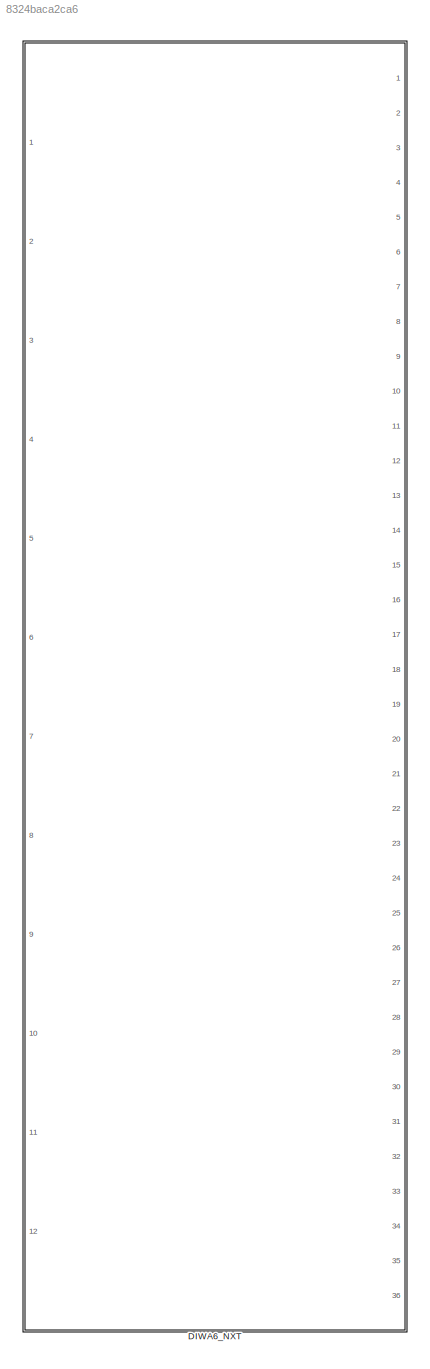
MODEL slx_8324baca2ca6
KIND library
CONFIG AbsTol = auto
CONFIG FixedStep = 0.01
CONFIG MaxStep = auto
CONFIG MinStep = auto
CONFIG RelTol = 1e-3
CONFIG SampleTimeConstraint = Unconstrained
CONFIG Solver = ode1
CONFIG SolverMode = Auto
CONFIG SolverName = ode1
CONFIG StartTime = 0.0
CONFIG StopTime = 10.0
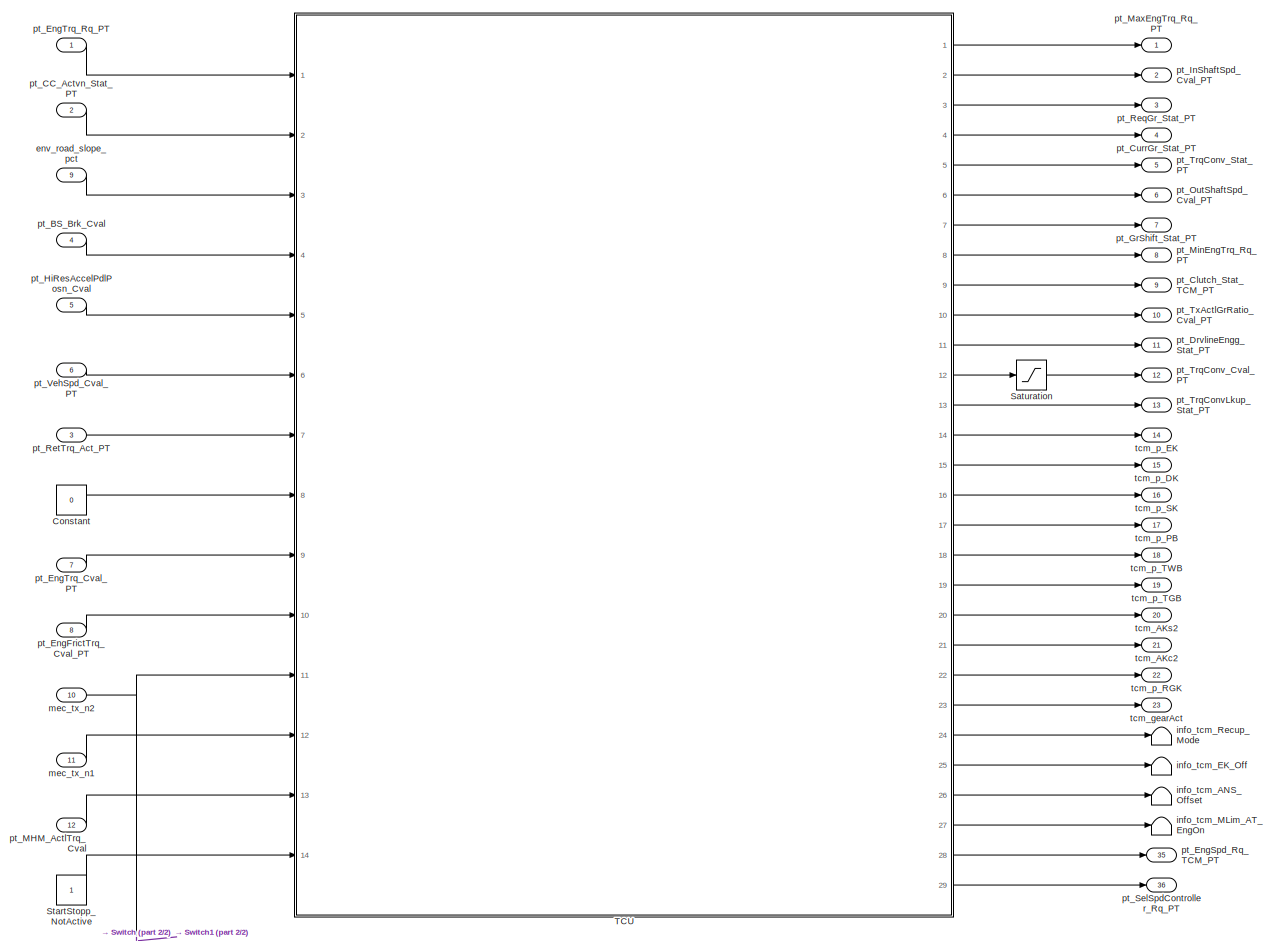
[diagram: DIWA6_NXT - part 1/2, full width, middle band]
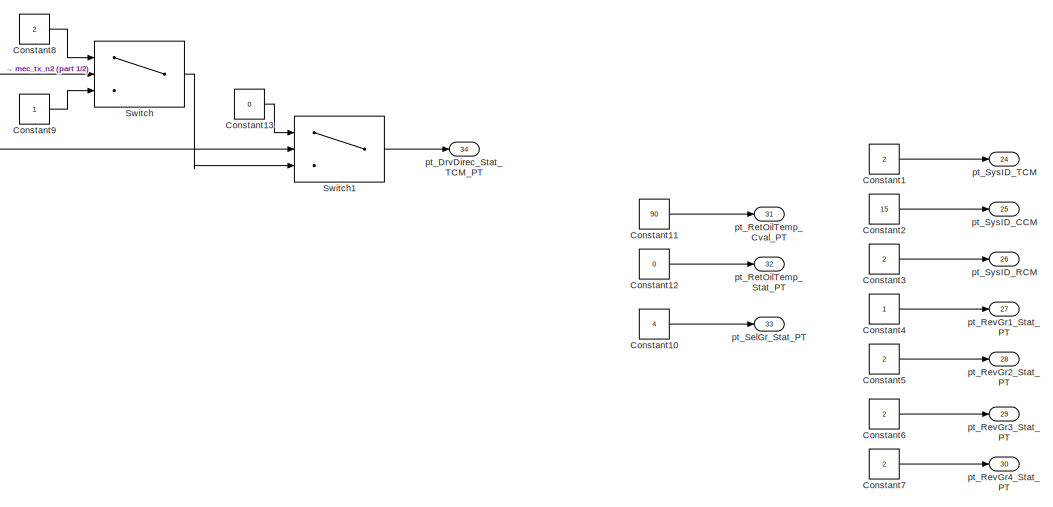
[diagram: DIWA6_NXT - part 2/2, full width, bottom band]
BLOCK [SubSystem] DIWA6_NXT
  Ports = [12, 36]
  RequestExecContextInheritance = off
  Variant = off
BLOCK [Constant] DIWA6_NXT/Constant
  Value = 0
BLOCK [Constant] DIWA6_NXT/Constant1
  Value = 2
BLOCK [Constant] DIWA6_NXT/Constant10
  Value = 4
BLOCK [Constant] DIWA6_NXT/Constant11
  Value = 90
BLOCK [Constant] DIWA6_NXT/Constant12
  Value = 0
BLOCK [Constant] DIWA6_NXT/Constant13
  Value = 0
BLOCK [Constant] DIWA6_NXT/Constant2
  Value = 15
BLOCK [Constant] DIWA6_NXT/Constant3
  Value = 2
BLOCK [Constant] DIWA6_NXT/Constant4
BLOCK [Constant] DIWA6_NXT/Constant5
  Value = 2
BLOCK [Constant] DIWA6_NXT/Constant6
  Value = 2
BLOCK [Constant] DIWA6_NXT/Constant7
  Value = 2
BLOCK [Constant] DIWA6_NXT/Constant8
  Value = 2
BLOCK [Constant] DIWA6_NXT/Constant9
BLOCK [Saturate] DIWA6_NXT/Saturation
  InputPortMap = u0
  LowerLimit = 0
  Ports = [1, 1]
  UpperLimit = 8107
BLOCK [Constant] DIWA6_NXT/StartStopp_NotActive
BLOCK [Switch] DIWA6_NXT/Switch
  Criteria = u2 > Threshold
  InputSameDT = off
  SaturateOnIntegerOverflow = off
  Threshold = -20
BLOCK [Switch] DIWA6_NXT/Switch1
  Criteria = u2 > Threshold
  InputSameDT = off
  SaturateOnIntegerOverflow = off
  Threshold = 20
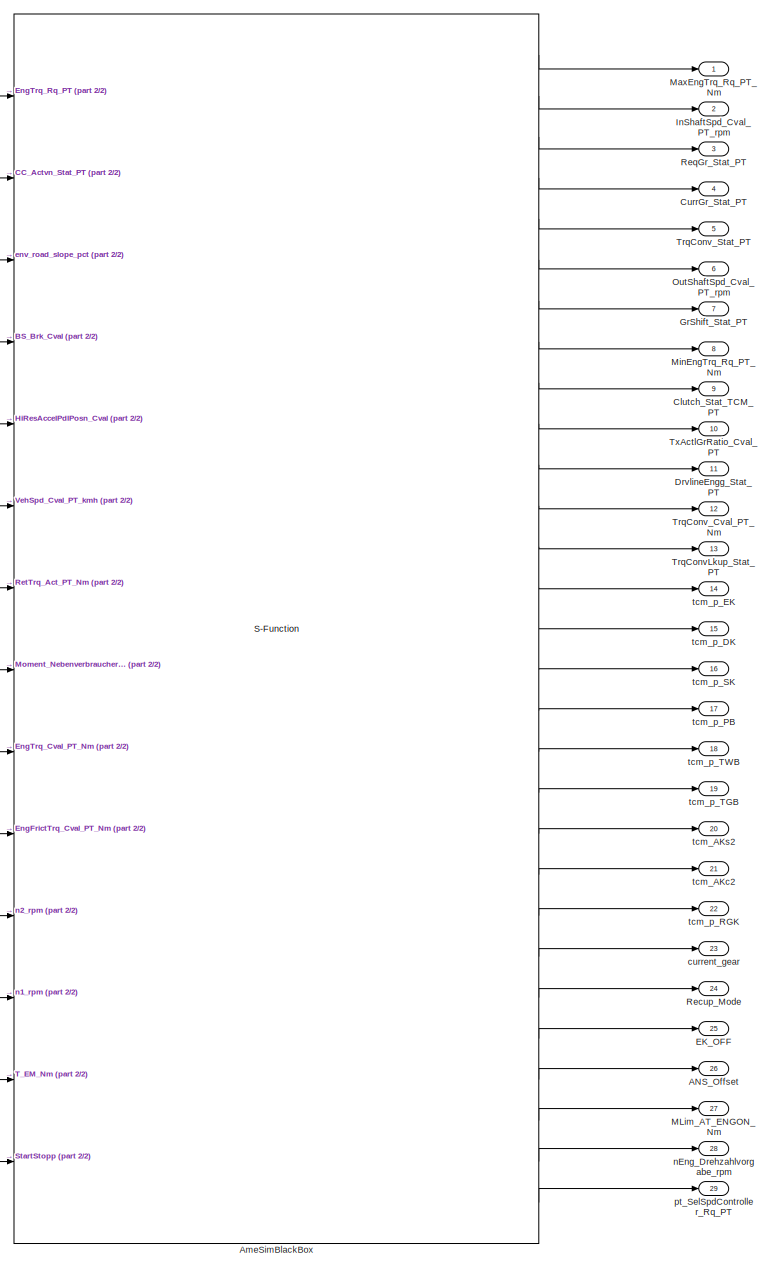
[diagram: DIWA6_NXT/TCU - part 1/2, most of the canvas]
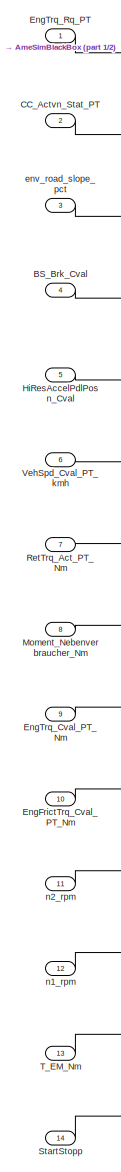
[diagram: DIWA6_NXT/TCU - part 2/2, left side, full height]
BLOCK [SubSystem] DIWA6_NXT/TCU
  Ports = [14, 29]
  RequestExecContextInheritance = off
  Variant = off
BLOCK [Outport] DIWA6_NXT/TCU/ANS_Offset
  IconDisplay = Port number
  Port = 26
BLOCK [S-Function] DIWA6_NXT/TCU/AmeSimBlackBox
  EnableBusSupport = off
  FunctionName = BB_DIWA_NXT_TCU_Daimler_2024_09_17
  Parameters = [1 0.01],DIWA_BB_ParNames,DIWA_BB_ParValues
  Ports = [14, 29]
  SFunctionDeploymentMode = off
BLOCK [Inport] DIWA6_NXT/TCU/BS_Brk_Cval
  IconDisplay = Port number
  Port = 4
BLOCK [Inport] DIWA6_NXT/TCU/CC_Actvn_Stat_PT
  IconDisplay = Port number
  Port = 2
BLOCK [Outport] DIWA6_NXT/TCU/Clutch_Stat_TCM_PT
  IconDisplay = Port number
  Port = 9
BLOCK [Outport] DIWA6_NXT/TCU/CurrGr_Stat_PT
  IconDisplay = Port number
  Port = 4
BLOCK [Outport] DIWA6_NXT/TCU/DrvlineEngg_Stat_PT
  IconDisplay = Port number
  Port = 11
BLOCK [Outport] DIWA6_NXT/TCU/EK_OFF
  IconDisplay = Port number
  Port = 25
BLOCK [Inport] DIWA6_NXT/TCU/EngFrictTrq_Cval_PT_Nm
  IconDisplay = Port number
  Port = 10
BLOCK [Inport] DIWA6_NXT/TCU/EngTrq_Cval_PT_Nm
  IconDisplay = Port number
  Port = 9
BLOCK [Inport] DIWA6_NXT/TCU/EngTrq_Rq_PT
  IconDisplay = Port number
BLOCK [Outport] DIWA6_NXT/TCU/GrShift_Stat_PT
  IconDisplay = Port number
  Port = 7
BLOCK [Inport] DIWA6_NXT/TCU/HiResAccelPdlPosn_Cval
  IconDisplay = Port number
  Port = 5
BLOCK [Outport] DIWA6_NXT/TCU/InShaftSpd_Cval_PT_rpm
  IconDisplay = Port number
  Port = 2
BLOCK [Outport] DIWA6_NXT/TCU/MLim_AT_ENGON_Nm
  IconDisplay = Port number
  Port = 27
BLOCK [Outport] DIWA6_NXT/TCU/MaxEngTrq_Rq_PT_Nm
  IconDisplay = Port number
BLOCK [Outport] DIWA6_NXT/TCU/MinEngTrq_Rq_PT_Nm
  IconDisplay = Port number
  Port = 8
BLOCK [Inport] DIWA6_NXT/TCU/Moment_Nebenverbraucher_Nm
  IconDisplay = Port number
  Port = 8
BLOCK [Outport] DIWA6_NXT/TCU/OutShaftSpd_Cval_PT_rpm
  IconDisplay = Port number
  Port = 6
BLOCK [Outport] DIWA6_NXT/TCU/Recup_Mode
  IconDisplay = Port number
  Port = 24
BLOCK [Outport] DIWA6_NXT/TCU/ReqGr_Stat_PT
  IconDisplay = Port number
  Port = 3
BLOCK [Inport] DIWA6_NXT/TCU/RetTrq_Act_PT_Nm
  IconDisplay = Port number
  Port = 7
BLOCK [Inport] DIWA6_NXT/TCU/StartStopp
  IconDisplay = Port number
  Port = 14
BLOCK [Inport] DIWA6_NXT/TCU/T_EM_Nm
  IconDisplay = Port number
  Port = 13
BLOCK [Outport] DIWA6_NXT/TCU/TrqConvLkup_Stat_PT
  IconDisplay = Port number
  Port = 13
BLOCK [Outport] DIWA6_NXT/TCU/TrqConv_Cval_PT_Nm
  IconDisplay = Port number
  Port = 12
BLOCK [Outport] DIWA6_NXT/TCU/TrqConv_Stat_PT
  IconDisplay = Port number
  Port = 5
BLOCK [Outport] DIWA6_NXT/TCU/TxActlGrRatio_Cval_PT
  IconDisplay = Port number
  Port = 10
BLOCK [Inport] DIWA6_NXT/TCU/VehSpd_Cval_PT_kmh
  IconDisplay = Port number
  Port = 6
BLOCK [Outport] DIWA6_NXT/TCU/current_gear
  IconDisplay = Port number
  Port = 23
BLOCK [Inport] DIWA6_NXT/TCU/env_road_slope_pct
  IconDisplay = Port number
  Port = 3
BLOCK [Inport] DIWA6_NXT/TCU/n1_rpm
  IconDisplay = Port number
  Port = 12
BLOCK [Inport] DIWA6_NXT/TCU/n2_rpm
  IconDisplay = Port number
  Port = 11
BLOCK [Outport] DIWA6_NXT/TCU/nEng_Drehzahlvorgabe_rpm 
  IconDisplay = Port number
  Port = 28
BLOCK [Outport] DIWA6_NXT/TCU/pt_SelSpdController_Rq_PT
  IconDisplay = Port number
  Port = 29
BLOCK [Outport] DIWA6_NXT/TCU/tcm_AKc2
  IconDisplay = Port number
  Port = 21
BLOCK [Outport] DIWA6_NXT/TCU/tcm_AKs2
  IconDisplay = Port number
  Port = 20
BLOCK [Outport] DIWA6_NXT/TCU/tcm_p_DK
  IconDisplay = Port number
  Port = 15
BLOCK [Outport] DIWA6_NXT/TCU/tcm_p_EK
  IconDisplay = Port number
  Port = 14
BLOCK [Outport] DIWA6_NXT/TCU/tcm_p_PB
  IconDisplay = Port number
  Port = 17
BLOCK [Outport] DIWA6_NXT/TCU/tcm_p_RGK
  IconDisplay = Port number
  Port = 22
BLOCK [Outport] DIWA6_NXT/TCU/tcm_p_SK
  IconDisplay = Port number
  Port = 16
BLOCK [Outport] DIWA6_NXT/TCU/tcm_p_TGB
  IconDisplay = Port number
  Port = 19
BLOCK [Outport] DIWA6_NXT/TCU/tcm_p_TWB
  IconDisplay = Port number
  Port = 18
BLOCK [Inport] DIWA6_NXT/env_road_slope_pct
  IconDisplay = Port number
  Port = 9
BLOCK [Terminator] DIWA6_NXT/info_tcm_ANS_Offset
BLOCK [Terminator] DIWA6_NXT/info_tcm_EK_Off
BLOCK [Terminator] DIWA6_NXT/info_tcm_MLim_AT_EngOn
BLOCK [Terminator] DIWA6_NXT/info_tcm_Recup_Mode
BLOCK [Inport] DIWA6_NXT/mec_tx_n1
  IconDisplay = Port number
  Port = 11
BLOCK [Inport] DIWA6_NXT/mec_tx_n2
  IconDisplay = Port number
  Port = 10
BLOCK [Inport] DIWA6_NXT/pt_BS_Brk_Cval
  IconDisplay = Port number
  Port = 4
BLOCK [Inport] DIWA6_NXT/pt_CC_Actvn_Stat_PT
  IconDisplay = Port number
  Port = 2
BLOCK [Outport] DIWA6_NXT/pt_Clutch_Stat_TCM_PT
  IconDisplay = Port number
  Port = 9
BLOCK [Outport] DIWA6_NXT/pt_CurrGr_Stat_PT
  IconDisplay = Port number
  Port = 4
BLOCK [Outport] DIWA6_NXT/pt_DrvDirec_Stat_TCM_PT
  IconDisplay = Port number
  Port = 34
BLOCK [Outport] DIWA6_NXT/pt_DrvlineEngg_Stat_PT
  IconDisplay = Port number
  Port = 11
BLOCK [Inport] DIWA6_NXT/pt_EngFrictTrq_Cval_PT
  IconDisplay = Port number
  Port = 8
BLOCK [Outport] DIWA6_NXT/pt_EngSpd_Rq_TCM_PT
  IconDisplay = Port number
  Port = 35
BLOCK [Inport] DIWA6_NXT/pt_EngTrq_Cval_PT
  IconDisplay = Port number
  Port = 7
BLOCK [Inport] DIWA6_NXT/pt_EngTrq_Rq_PT
  IconDisplay = Port number
BLOCK [Outport] DIWA6_NXT/pt_GrShift_Stat_PT
  IconDisplay = Port number
  Port = 7
BLOCK [Inport] DIWA6_NXT/pt_HiResAccelPdlPosn_Cval
  IconDisplay = Port number
  Port = 5
BLOCK [Outport] DIWA6_NXT/pt_InShaftSpd_Cval_PT
  IconDisplay = Port number
  Port = 2
BLOCK [Inport] DIWA6_NXT/pt_MHM_ActlTrq_Cval
  IconDisplay = Port number
  Port = 12
BLOCK [Outport] DIWA6_NXT/pt_MaxEngTrq_Rq_PT
  IconDisplay = Port number
BLOCK [Outport] DIWA6_NXT/pt_MinEngTrq_Rq_PT
  IconDisplay = Port number
  Port = 8
BLOCK [Outport] DIWA6_NXT/pt_OutShaftSpd_Cval_PT
  IconDisplay = Port number
  Port = 6
BLOCK [Outport] DIWA6_NXT/pt_ReqGr_Stat_PT
  IconDisplay = Port number
  Port = 3
BLOCK [Outport] DIWA6_NXT/pt_RetOilTemp_Cval_PT
  IconDisplay = Port number
  Port = 31
BLOCK [Outport] DIWA6_NXT/pt_RetOilTemp_Stat_PT
  IconDisplay = Port number
  Port = 32
BLOCK [Inport] DIWA6_NXT/pt_RetTrq_Act_PT
  IconDisplay = Port number
  Port = 3
BLOCK [Outport] DIWA6_NXT/pt_RevGr1_Stat_PT
  IconDisplay = Port number
  Port = 27
BLOCK [Outport] DIWA6_NXT/pt_RevGr2_Stat_PT
  IconDisplay = Port number
  Port = 28
BLOCK [Outport] DIWA6_NXT/pt_RevGr3_Stat_PT
  IconDisplay = Port number
  Port = 29
BLOCK [Outport] DIWA6_NXT/pt_RevGr4_Stat_PT
  IconDisplay = Port number
  Port = 30
BLOCK [Outport] DIWA6_NXT/pt_SelGr_Stat_PT
  IconDisplay = Port number
  Port = 33
BLOCK [Outport] DIWA6_NXT/pt_SelSpdController_Rq_PT
  IconDisplay = Port number
  Port = 36
BLOCK [Outport] DIWA6_NXT/pt_SysID_CCM
  IconDisplay = Port number
  Port = 25
BLOCK [Outport] DIWA6_NXT/pt_SysID_RCM
  IconDisplay = Port number
  Port = 26
BLOCK [Outport] DIWA6_NXT/pt_SysID_TCM
  IconDisplay = Port number
  Port = 24
BLOCK [Outport] DIWA6_NXT/pt_TrqConvLkup_Stat_PT
  IconDisplay = Port number
  Port = 13
BLOCK [Outport] DIWA6_NXT/pt_TrqConv_Cval_PT
  IconDisplay = Port number
  Port = 12
BLOCK [Outport] DIWA6_NXT/pt_TrqConv_Stat_PT
  IconDisplay = Port number
  Port = 5
BLOCK [Outport] DIWA6_NXT/pt_TxActlGrRatio_Cval_PT
  IconDisplay = Port number
  Port = 10
BLOCK [Inport] DIWA6_NXT/pt_VehSpd_Cval_PT
  IconDisplay = Port number
  Port = 6
BLOCK [Outport] DIWA6_NXT/tcm_AKc2
  IconDisplay = Port number
  Port = 21
BLOCK [Outport] DIWA6_NXT/tcm_AKs2
  IconDisplay = Port number
  Port = 20
BLOCK [Outport] DIWA6_NXT/tcm_gearAct
  IconDisplay = Port number
  Port = 23
BLOCK [Outport] DIWA6_NXT/tcm_p_DK
  IconDisplay = Port number
  Port = 15
BLOCK [Outport] DIWA6_NXT/tcm_p_EK
  IconDisplay = Port number
  Port = 14
BLOCK [Outport] DIWA6_NXT/tcm_p_PB
  IconDisplay = Port number
  Port = 17
BLOCK [Outport] DIWA6_NXT/tcm_p_RGK
  IconDisplay = Port number
  Port = 22
BLOCK [Outport] DIWA6_NXT/tcm_p_SK
  IconDisplay = Port number
  Port = 16
BLOCK [Outport] DIWA6_NXT/tcm_p_TGB
  IconDisplay = Port number
  Port = 19
BLOCK [Outport] DIWA6_NXT/tcm_p_TWB
  IconDisplay = Port number
  Port = 18
LINE DIWA6_NXT/Constant10:1 -> DIWA6_NXT/pt_SelGr_Stat_PT:1
LINE DIWA6_NXT/Constant11:1 -> DIWA6_NXT/pt_RetOilTemp_Cval_PT:1
LINE DIWA6_NXT/Constant12:1 -> DIWA6_NXT/pt_RetOilTemp_Stat_PT:1
LINE DIWA6_NXT/Constant13:1 -> DIWA6_NXT/Switch1:1
LINE DIWA6_NXT/Constant1:1 -> DIWA6_NXT/pt_SysID_TCM:1
LINE DIWA6_NXT/Constant2:1 -> DIWA6_NXT/pt_SysID_CCM:1
LINE DIWA6_NXT/Constant3:1 -> DIWA6_NXT/pt_SysID_RCM:1
LINE DIWA6_NXT/Constant4:1 -> DIWA6_NXT/pt_RevGr1_Stat_PT:1
LINE DIWA6_NXT/Constant5:1 -> DIWA6_NXT/pt_RevGr2_Stat_PT:1
LINE DIWA6_NXT/Constant6:1 -> DIWA6_NXT/pt_RevGr3_Stat_PT:1
LINE DIWA6_NXT/Constant7:1 -> DIWA6_NXT/pt_RevGr4_Stat_PT:1
LINE DIWA6_NXT/Constant8:1 -> DIWA6_NXT/Switch:1
LINE DIWA6_NXT/Constant9:1 -> DIWA6_NXT/Switch:3
LINE DIWA6_NXT/Constant:1 -> DIWA6_NXT/TCU:8
LINE DIWA6_NXT/Saturation:1 -> DIWA6_NXT/pt_TrqConv_Cval_PT:1
LINE DIWA6_NXT/StartStopp_NotActive:1 -> DIWA6_NXT/TCU:14
LINE DIWA6_NXT/Switch1:1 -> DIWA6_NXT/pt_DrvDirec_Stat_TCM_PT:1
LINE DIWA6_NXT/Switch:1 -> DIWA6_NXT/Switch1:3
LINE DIWA6_NXT/TCU/AmeSimBlackBox:1 -> DIWA6_NXT/TCU/MaxEngTrq_Rq_PT_Nm:1
LINE DIWA6_NXT/TCU/AmeSimBlackBox:10 -> DIWA6_NXT/TCU/TxActlGrRatio_Cval_PT:1
LINE DIWA6_NXT/TCU/AmeSimBlackBox:11 -> DIWA6_NXT/TCU/DrvlineEngg_Stat_PT:1
LINE DIWA6_NXT/TCU/AmeSimBlackBox:12 -> DIWA6_NXT/TCU/TrqConv_Cval_PT_Nm:1
LINE DIWA6_NXT/TCU/AmeSimBlackBox:13 -> DIWA6_NXT/TCU/TrqConvLkup_Stat_PT:1
LINE DIWA6_NXT/TCU/AmeSimBlackBox:14 -> DIWA6_NXT/TCU/tcm_p_EK:1
LINE DIWA6_NXT/TCU/AmeSimBlackBox:15 -> DIWA6_NXT/TCU/tcm_p_DK:1
LINE DIWA6_NXT/TCU/AmeSimBlackBox:16 -> DIWA6_NXT/TCU/tcm_p_SK:1
LINE DIWA6_NXT/TCU/AmeSimBlackBox:17 -> DIWA6_NXT/TCU/tcm_p_PB:1
LINE DIWA6_NXT/TCU/AmeSimBlackBox:18 -> DIWA6_NXT/TCU/tcm_p_TWB:1
LINE DIWA6_NXT/TCU/AmeSimBlackBox:19 -> DIWA6_NXT/TCU/tcm_p_TGB:1
LINE DIWA6_NXT/TCU/AmeSimBlackBox:2 -> DIWA6_NXT/TCU/InShaftSpd_Cval_PT_rpm:1
LINE DIWA6_NXT/TCU/AmeSimBlackBox:20 -> DIWA6_NXT/TCU/tcm_AKs2:1
LINE DIWA6_NXT/TCU/AmeSimBlackBox:21 -> DIWA6_NXT/TCU/tcm_AKc2:1
LINE DIWA6_NXT/TCU/AmeSimBlackBox:22 -> DIWA6_NXT/TCU/tcm_p_RGK:1
LINE DIWA6_NXT/TCU/AmeSimBlackBox:23 -> DIWA6_NXT/TCU/current_gear:1
LINE DIWA6_NXT/TCU/AmeSimBlackBox:24 -> DIWA6_NXT/TCU/Recup_Mode:1
LINE DIWA6_NXT/TCU/AmeSimBlackBox:25 -> DIWA6_NXT/TCU/EK_OFF:1
LINE DIWA6_NXT/TCU/AmeSimBlackBox:26 -> DIWA6_NXT/TCU/ANS_Offset:1
LINE DIWA6_NXT/TCU/AmeSimBlackBox:27 -> DIWA6_NXT/TCU/MLim_AT_ENGON_Nm:1
LINE DIWA6_NXT/TCU/AmeSimBlackBox:28 -> DIWA6_NXT/TCU/nEng_Drehzahlvorgabe_rpm :1
LINE DIWA6_NXT/TCU/AmeSimBlackBox:29 -> DIWA6_NXT/TCU/pt_SelSpdController_Rq_PT:1
LINE DIWA6_NXT/TCU/AmeSimBlackBox:3 -> DIWA6_NXT/TCU/ReqGr_Stat_PT:1
LINE DIWA6_NXT/TCU/AmeSimBlackBox:4 -> DIWA6_NXT/TCU/CurrGr_Stat_PT:1
LINE DIWA6_NXT/TCU/AmeSimBlackBox:5 -> DIWA6_NXT/TCU/TrqConv_Stat_PT:1
LINE DIWA6_NXT/TCU/AmeSimBlackBox:6 -> DIWA6_NXT/TCU/OutShaftSpd_Cval_PT_rpm:1
LINE DIWA6_NXT/TCU/AmeSimBlackBox:7 -> DIWA6_NXT/TCU/GrShift_Stat_PT:1
LINE DIWA6_NXT/TCU/AmeSimBlackBox:8 -> DIWA6_NXT/TCU/MinEngTrq_Rq_PT_Nm:1
LINE DIWA6_NXT/TCU/AmeSimBlackBox:9 -> DIWA6_NXT/TCU/Clutch_Stat_TCM_PT:1
LINE DIWA6_NXT/TCU/BS_Brk_Cval:1 -> DIWA6_NXT/TCU/AmeSimBlackBox:4
LINE DIWA6_NXT/TCU/CC_Actvn_Stat_PT:1 -> DIWA6_NXT/TCU/AmeSimBlackBox:2
LINE DIWA6_NXT/TCU/EngFrictTrq_Cval_PT_Nm:1 -> DIWA6_NXT/TCU/AmeSimBlackBox:10
LINE DIWA6_NXT/TCU/EngTrq_Cval_PT_Nm:1 -> DIWA6_NXT/TCU/AmeSimBlackBox:9
LINE DIWA6_NXT/TCU/EngTrq_Rq_PT:1 -> DIWA6_NXT/TCU/AmeSimBlackBox:1
LINE DIWA6_NXT/TCU/HiResAccelPdlPosn_Cval:1 -> DIWA6_NXT/TCU/AmeSimBlackBox:5
LINE DIWA6_NXT/TCU/Moment_Nebenverbraucher_Nm:1 -> DIWA6_NXT/TCU/AmeSimBlackBox:8
LINE DIWA6_NXT/TCU/RetTrq_Act_PT_Nm:1 -> DIWA6_NXT/TCU/AmeSimBlackBox:7
LINE DIWA6_NXT/TCU/StartStopp:1 -> DIWA6_NXT/TCU/AmeSimBlackBox:14
LINE DIWA6_NXT/TCU/T_EM_Nm:1 -> DIWA6_NXT/TCU/AmeSimBlackBox:13
LINE DIWA6_NXT/TCU/VehSpd_Cval_PT_kmh:1 -> DIWA6_NXT/TCU/AmeSimBlackBox:6
LINE DIWA6_NXT/TCU/env_road_slope_pct:1 -> DIWA6_NXT/TCU/AmeSimBlackBox:3
LINE DIWA6_NXT/TCU/n1_rpm:1 -> DIWA6_NXT/TCU/AmeSimBlackBox:12
LINE DIWA6_NXT/TCU/n2_rpm:1 -> DIWA6_NXT/TCU/AmeSimBlackBox:11
LINE DIWA6_NXT/TCU:1 -> DIWA6_NXT/pt_MaxEngTrq_Rq_PT:1
LINE DIWA6_NXT/TCU:10 -> DIWA6_NXT/pt_TxActlGrRatio_Cval_PT:1
LINE DIWA6_NXT/TCU:11 -> DIWA6_NXT/pt_DrvlineEngg_Stat_PT:1
LINE DIWA6_NXT/TCU:12 -> DIWA6_NXT/Saturation:1
LINE DIWA6_NXT/TCU:13 -> DIWA6_NXT/pt_TrqConvLkup_Stat_PT:1
LINE DIWA6_NXT/TCU:14 -> DIWA6_NXT/tcm_p_EK:1
LINE DIWA6_NXT/TCU:15 -> DIWA6_NXT/tcm_p_DK:1
LINE DIWA6_NXT/TCU:16 -> DIWA6_NXT/tcm_p_SK:1
LINE DIWA6_NXT/TCU:17 -> DIWA6_NXT/tcm_p_PB:1
LINE DIWA6_NXT/TCU:18 -> DIWA6_NXT/tcm_p_TWB:1
LINE DIWA6_NXT/TCU:19 -> DIWA6_NXT/tcm_p_TGB:1
LINE DIWA6_NXT/TCU:2 -> DIWA6_NXT/pt_InShaftSpd_Cval_PT:1
LINE DIWA6_NXT/TCU:20 -> DIWA6_NXT/tcm_AKs2:1
LINE DIWA6_NXT/TCU:21 -> DIWA6_NXT/tcm_AKc2:1
LINE DIWA6_NXT/TCU:22 -> DIWA6_NXT/tcm_p_RGK:1
LINE DIWA6_NXT/TCU:23 -> DIWA6_NXT/tcm_gearAct:1
LINE DIWA6_NXT/TCU:24 -> DIWA6_NXT/info_tcm_Recup_Mode:1
LINE DIWA6_NXT/TCU:25 -> DIWA6_NXT/info_tcm_EK_Off:1
LINE DIWA6_NXT/TCU:26 -> DIWA6_NXT/info_tcm_ANS_Offset:1
LINE DIWA6_NXT/TCU:27 -> DIWA6_NXT/info_tcm_MLim_AT_EngOn:1
LINE DIWA6_NXT/TCU:28 -> DIWA6_NXT/pt_EngSpd_Rq_TCM_PT:1
LINE DIWA6_NXT/TCU:29 -> DIWA6_NXT/pt_SelSpdController_Rq_PT:1
LINE DIWA6_NXT/TCU:3 -> DIWA6_NXT/pt_ReqGr_Stat_PT:1
LINE DIWA6_NXT/TCU:4 -> DIWA6_NXT/pt_CurrGr_Stat_PT:1
LINE DIWA6_NXT/TCU:5 -> DIWA6_NXT/pt_TrqConv_Stat_PT:1
LINE DIWA6_NXT/TCU:6 -> DIWA6_NXT/pt_OutShaftSpd_Cval_PT:1
LINE DIWA6_NXT/TCU:7 -> DIWA6_NXT/pt_GrShift_Stat_PT:1
LINE DIWA6_NXT/TCU:8 -> DIWA6_NXT/pt_MinEngTrq_Rq_PT:1
LINE DIWA6_NXT/TCU:9 -> DIWA6_NXT/pt_Clutch_Stat_TCM_PT:1
LINE DIWA6_NXT/env_road_slope_pct:1 -> DIWA6_NXT/TCU:3
LINE DIWA6_NXT/mec_tx_n1:1 -> DIWA6_NXT/TCU:12
NET DIWA6_NXT/mec_tx_n2:1 -> DIWA6_NXT/Switch1:2, DIWA6_NXT/Switch:2, DIWA6_NXT/TCU:11
LINE DIWA6_NXT/pt_BS_Brk_Cval:1 -> DIWA6_NXT/TCU:4
LINE DIWA6_NXT/pt_CC_Actvn_Stat_PT:1 -> DIWA6_NXT/TCU:2
LINE DIWA6_NXT/pt_EngFrictTrq_Cval_PT:1 -> DIWA6_NXT/TCU:10
LINE DIWA6_NXT/pt_EngTrq_Cval_PT:1 -> DIWA6_NXT/TCU:9
LINE DIWA6_NXT/pt_EngTrq_Rq_PT:1 -> DIWA6_NXT/TCU:1
LINE DIWA6_NXT/pt_HiResAccelPdlPosn_Cval:1 -> DIWA6_NXT/TCU:5
LINE DIWA6_NXT/pt_MHM_ActlTrq_Cval:1 -> DIWA6_NXT/TCU:13
LINE DIWA6_NXT/pt_RetTrq_Act_PT:1 -> DIWA6_NXT/TCU:7
LINE DIWA6_NXT/pt_VehSpd_Cval_PT:1 -> DIWA6_NXT/TCU:6
note: NET lines group one-source signal fan-out (src -> all destinations, sorted); 1:1 wires keep LINE
